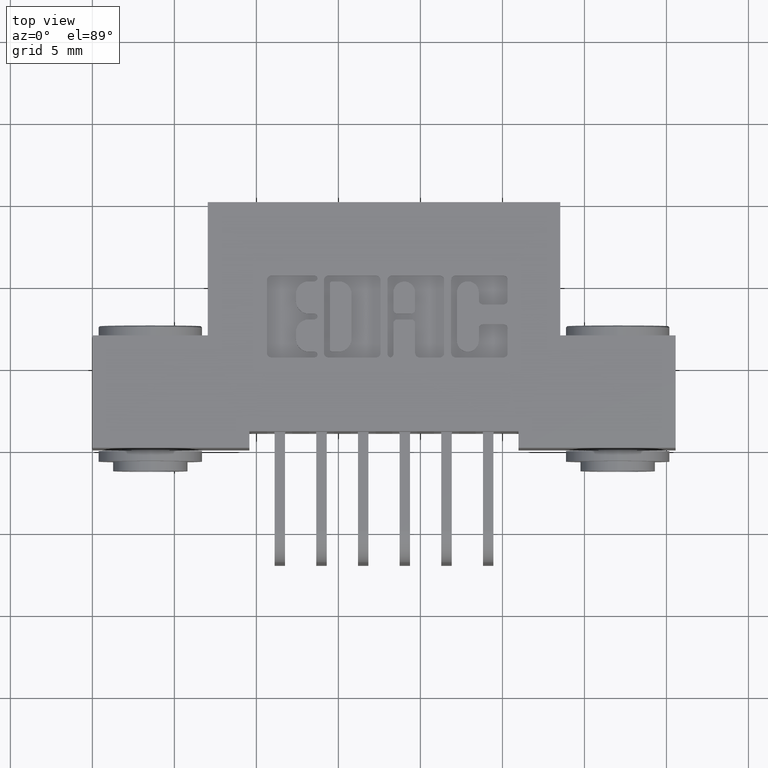
[diagram: clean part render]
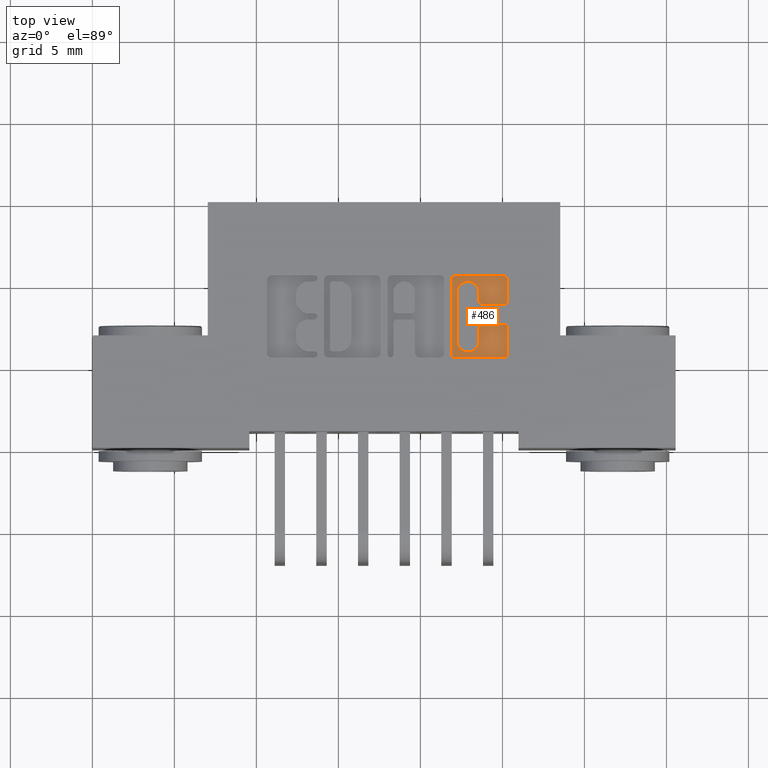
[diagram: same view with one face highlighted and labeled with its STEP entity id]
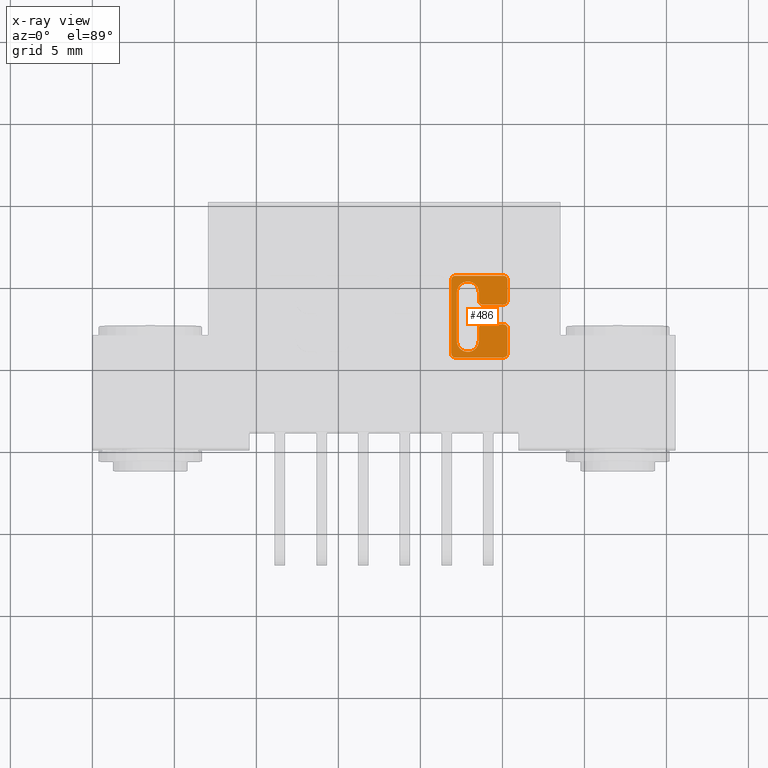
[diagram: x-ray of the same camera — body ghosted, the highlighted face saturated]
A machine part, top view. The second image highlights one B-rep face of the part: STEP entity #486.
The next image is the same camera in x-ray: the body ghosted, the highlighted face saturated — about 0% of this face is hidden behind the body in this view.
In plain terms, the highlighted planar face has unit normal (0, 0, 1).
Its self-contained STEP definition (entity closure, byte-faithful):
#142 = CARTESIAN_POINT ( 'NONE',  ( 0.9274781569731789200, 0.2568421540424529700, -0.01000000000000000000 ) ) ;
#288 = AXIS2_PLACEMENT_3D ( 'NONE', #3077, #3147, #3045 ) ;
#290 = EDGE_CURVE ( 'NONE', #2171, #2040, #5372, .T. ) ;
#343 = ORIENTED_EDGE ( 'NONE', *, *, #8305, .T. ) ;
#353 = EDGE_CURVE ( 'NONE', #1135, #7141, #3125, .T. ) ;
#371 = EDGE_CURVE ( 'NONE', #6060, #2040, #6993, .T. ) ;
#372 = ORIENTED_EDGE ( 'NONE', *, *, #1027, .T. ) ;
#385 = LINE ( 'NONE', #4344, #3640 ) ;
#418 = DIRECTION ( 'NONE',  ( 0.0000000000000000000, 1.000000000000000000, -0.0000000000000000000 ) ) ;
#442 = ORIENTED_EDGE ( 'NONE', *, *, #371, .T. ) ;
#486 = ADVANCED_FACE ( 'NONE', ( #2154 ), #2582, .T. ) ;
#634 = CIRCLE ( 'NONE', #6360, 0.009815670203811672700 ) ;
#677 = AXIS2_PLACEMENT_3D ( 'NONE', #2444, #2121, #870 ) ;
#755 = VECTOR ( 'NONE', #1211, 39.37007874015748100 ) ;
#852 = CARTESIAN_POINT ( 'NONE',  ( 0.8612223830974584700, 0.4033410318342101100, -0.01000000000000000000 ) ) ;
#870 = DIRECTION ( 'NONE',  ( 1.000000000000000000, 0.0000000000000000000, 0.0000000000000000000 ) ) ;
#929 = CARTESIAN_POINT ( 'NONE',  ( 0.9966786319099720800, 0.4033410318341947900, -0.01000000000000000000 ) ) ;
#968 = VECTOR ( 'NONE', #4369, 39.37007874015748100 ) ;
#1009 = VECTOR ( 'NONE', #418, 39.37007874015748100 ) ;
#1014 = LINE ( 'NONE', #8104, #8121 ) ;
#1017 = CARTESIAN_POINT ( 'NONE',  ( 0.0000000000000000000, 0.2963502266127575600, -0.01000000000000000000 ) ) ;
#1027 = EDGE_CURVE ( 'NONE', #6932, #4885, #5375, .T. ) ;
#1106 = EDGE_CURVE ( 'NONE', #2171, #2189, #1014, .T. ) ;
#1129 = EDGE_CURVE ( 'NONE', #8380, #8738, #2712, .T. ) ;
#1135 = VERTEX_POINT ( 'NONE', #7956 ) ;
#1138 = DIRECTION ( 'NONE',  ( 1.000000000000000000, 0.0000000000000000000, 0.0000000000000000000 ) ) ;
#1211 = DIRECTION ( 'NONE',  ( -1.000000000000000000, 0.0000000000000000000, 0.0000000000000000000 ) ) ;
#1233 = VECTOR ( 'NONE', #4773, 39.37007874015748100 ) ;
#1240 = DIRECTION ( 'NONE',  ( -0.0000000000000000000, 0.0000000000000000000, 1.000000000000000000 ) ) ;
#1345 = AXIS2_PLACEMENT_3D ( 'NONE', #2216, #2159, #2118 ) ;
#1510 = CIRCLE ( 'NONE', #1345, 0.009815670203804980100 ) ;
#1573 = VECTOR ( 'NONE', #4543, 39.37007874015748100 ) ;
#1577 = DIRECTION ( 'NONE',  ( 1.000000000000000000, 0.0000000000000000000, 0.0000000000000000000 ) ) ;
#1691 = DIRECTION ( 'NONE',  ( -0.0000000000000000000, 0.0000000000000000000, 1.000000000000000000 ) ) ;
#1695 = CARTESIAN_POINT ( 'NONE',  ( 0.9868629617061529500, 0.2865345564089704100, -0.01000000000000000000 ) ) ;
#1730 = LINE ( 'NONE', #4117, #8771 ) ;
#1866 = VERTEX_POINT ( 'NONE', #4081 ) ;
#1912 = CARTESIAN_POINT ( 'NONE',  ( 0.9966786319099402200, 0.0000000000000000000, -0.01000000000000000000 ) ) ;
#1987 = VERTEX_POINT ( 'NONE', #5186 ) ;
#2040 = VERTEX_POINT ( 'NONE', #7015 ) ;
#2099 = CARTESIAN_POINT ( 'NONE',  ( 0.9868629617061319700, 0.4033410318342109400, -0.01000000000000000000 ) ) ;
#2118 = DIRECTION ( 'NONE',  ( 1.000000000000000000, 0.0000000000000000000, 0.0000000000000000000 ) ) ;
#2121 = DIRECTION ( 'NONE',  ( -0.0000000000000000000, 0.0000000000000000000, 1.000000000000000000 ) ) ;
#2154 = FACE_OUTER_BOUND ( 'NONE', #6549, .T. ) ;
#2159 = DIRECTION ( 'NONE',  ( -0.0000000000000000000, 0.0000000000000000000, 1.000000000000000000 ) ) ;
#2171 = VERTEX_POINT ( 'NONE', #3623 ) ;
#2189 = VERTEX_POINT ( 'NONE', #5973 ) ;
#2198 = ORIENTED_EDGE ( 'NONE', *, *, #3734, .T. ) ;
#2216 = CARTESIAN_POINT ( 'NONE',  ( 0.9868629617061670500, 0.3537718973050386600, -0.01000000000000000000 ) ) ;
#2252 = DIRECTION ( 'NONE',  ( 1.000000000000000000, 0.0000000000000000000, 0.0000000000000000000 ) ) ;
#2260 = DIRECTION ( 'NONE',  ( -0.0000000000000000000, 0.0000000000000000000, 1.000000000000000000 ) ) ;
#2264 = CARTESIAN_POINT ( 'NONE',  ( 0.8710380533012994600, 0.4033410318342101100, -0.01000000000000000000 ) ) ;
#2444 = CARTESIAN_POINT ( 'NONE',  ( 0.0000000000000000000, 0.0000000000000000000, -0.01000000000000000000 ) ) ;
#2471 = DIRECTION ( 'NONE',  ( -0.0000000000000000000, 0.0000000000000000000, 1.000000000000000000 ) ) ;
#2490 = ORIENTED_EDGE ( 'NONE', *, *, #5027, .T. ) ;
#2582 = PLANE ( 'NONE',  #677 ) ;
#2639 = ORIENTED_EDGE ( 'NONE', *, *, #8896, .T. ) ;
#2668 = LINE ( 'NONE', #1017, #755 ) ;
#2712 = CIRCLE ( 'NONE', #7902, 0.009815670203788042300 ) ;
#2786 = VERTEX_POINT ( 'NONE', #4947 ) ;
#2820 = ORIENTED_EDGE ( 'NONE', *, *, #2883, .T. ) ;
#2825 = CARTESIAN_POINT ( 'NONE',  ( 0.9868629617061682700, 0.4131567020380509900, -0.01000000000000000000 ) ) ;
#2883 = EDGE_CURVE ( 'NONE', #8441, #8344, #3964, .T. ) ;
#3045 = DIRECTION ( 'NONE',  ( 1.000000000000000000, 0.0000000000000000000, 0.0000000000000000000 ) ) ;
#3077 = CARTESIAN_POINT ( 'NONE',  ( 0.9012212391779986800, 0.2568421540424529700, -0.01000000000000000000 ) ) ;
#3080 = VERTEX_POINT ( 'NONE', #8322 ) ;
#3125 = LINE ( 'NONE', #4766, #1233 ) ;
#3147 = DIRECTION ( 'NONE',  ( -0.0000000000000000000, 0.0000000000000000000, 1.000000000000000000 ) ) ;
#3151 = DIRECTION ( 'NONE',  ( 0.0000000000000000000, -1.000000000000000000, 0.0000000000000000000 ) ) ;
#3432 = CARTESIAN_POINT ( 'NONE',  ( 0.9966786319099720800, 0.3537718973050386600, -0.01000000000000000000 ) ) ;
#3456 = CIRCLE ( 'NONE', #8731, 0.009815670203806754800 ) ;
#3459 = EDGE_CURVE ( 'NONE', #4885, #8380, #2668, .T. ) ;
#3474 = CIRCLE ( 'NONE', #288, 0.02625691779518036400 ) ;
#3623 = CARTESIAN_POINT ( 'NONE',  ( 0.9274781569731658200, 0.3731578454992599000, -0.01000000000000000000 ) ) ;
#3640 = VECTOR ( 'NONE', #3151, 39.37007874015748100 ) ;
#3702 = AXIS2_PLACEMENT_3D ( 'NONE', #6612, #4641, #6032 ) ;
#3734 = EDGE_CURVE ( 'NONE', #8738, #4567, #385, .T. ) ;
#3806 = AXIS2_PLACEMENT_3D ( 'NONE', #1695, #1691, #1577 ) ;
#3807 = CARTESIAN_POINT ( 'NONE',  ( 0.9868629617061565100, 0.2963502266127575600, -0.01000000000000000000 ) ) ;
#3812 = VECTOR ( 'NONE', #5997, 39.37007874015748100 ) ;
#3814 = DIRECTION ( 'NONE',  ( -1.000000000000000000, 0.0000000000000000000, 0.0000000000000000000 ) ) ;
#3889 = CARTESIAN_POINT ( 'NONE',  ( 0.9966786319099402200, 0.2266589681657829600, -0.01000000000000000000 ) ) ;
#3902 = ORIENTED_EDGE ( 'NONE', *, *, #5823, .T. ) ;
#3964 = CIRCLE ( 'NONE', #6466, 0.009815670203840084000 ) ;
#4081 = CARTESIAN_POINT ( 'NONE',  ( 0.9868629617061670500, 0.3439562271012335800, -0.01000000000000000000 ) ) ;
#4117 = CARTESIAN_POINT ( 'NONE',  ( 0.0000000000000000000, 0.4131567020380509900, -0.01000000000000000000 ) ) ;
#4224 = ORIENTED_EDGE ( 'NONE', *, *, #290, .F. ) ;
#4290 = VERTEX_POINT ( 'NONE', #852 ) ;
#4337 = CARTESIAN_POINT ( 'NONE',  ( 0.8749643213828183200, 0.2568421540424529700, -0.01000000000000000000 ) ) ;
#4344 = CARTESIAN_POINT ( 'NONE',  ( 0.9274781569731789200, 0.0000000000000000000, -0.01000000000000000000 ) ) ;
#4360 = CARTESIAN_POINT ( 'NONE',  ( 0.0000000000000000000, 0.3439562271012335800, -0.01000000000000000000 ) ) ;
#4369 = DIRECTION ( 'NONE',  ( 1.000000000000000000, 0.0000000000000000000, 0.0000000000000000000 ) ) ;
#4483 = CARTESIAN_POINT ( 'NONE',  ( 0.9966786319099720800, 0.0000000000000000000, -0.01000000000000000000 ) ) ;
#4543 = DIRECTION ( 'NONE',  ( 0.0000000000000000000, 1.000000000000000000, -0.0000000000000000000 ) ) ;
#4567 = VERTEX_POINT ( 'NONE', #142 ) ;
#4631 = EDGE_CURVE ( 'NONE', #2189, #1987, #634, .T. ) ;
#4641 = DIRECTION ( 'NONE',  ( -0.0000000000000000000, 0.0000000000000000000, 1.000000000000000000 ) ) ;
#4664 = ORIENTED_EDGE ( 'NONE', *, *, #5381, .T. ) ;
#4677 = ORIENTED_EDGE ( 'NONE', *, *, #5815, .T. ) ;
#4703 = LINE ( 'NONE', #4360, #968 ) ;
#4739 = DIRECTION ( 'NONE',  ( 0.0000000000000000000, 1.000000000000000000, -0.0000000000000000000 ) ) ;
#4747 = CIRCLE ( 'NONE', #5933, 0.009815670203840902800 ) ;
#4766 = CARTESIAN_POINT ( 'NONE',  ( 0.0000000000000000000, 0.2168432979619831800, -0.01000000000000000000 ) ) ;
#4773 = DIRECTION ( 'NONE',  ( 1.000000000000000000, 0.0000000000000000000, 0.0000000000000000000 ) ) ;
#4854 = EDGE_CURVE ( 'NONE', #1987, #1866, #4703, .T. ) ;
#4885 = VERTEX_POINT ( 'NONE', #3807 ) ;
#4937 = VERTEX_POINT ( 'NONE', #3432 ) ;
#4947 = CARTESIAN_POINT ( 'NONE',  ( 0.8710380533012994600, 0.4131567020380509900, -0.01000000000000000000 ) ) ;
#5027 = EDGE_CURVE ( 'NONE', #1866, #4937, #1510, .T. ) ;
#5186 = CARTESIAN_POINT ( 'NONE',  ( 0.9372938271769775100, 0.3439562271012335800, -0.01000000000000000000 ) ) ;
#5320 = AXIS2_PLACEMENT_3D ( 'NONE', #6106, #6096, #6076 ) ;
#5349 = ORIENTED_EDGE ( 'NONE', *, *, #1129, .T. ) ;
#5372 = CIRCLE ( 'NONE', #3702, 0.02625691779517380600 ) ;
#5375 = CIRCLE ( 'NONE', #3806, 0.009815670203787221800 ) ;
#5376 = VERTEX_POINT ( 'NONE', #3889 ) ;
#5381 = EDGE_CURVE ( 'NONE', #8344, #2786, #1730, .T. ) ;
#5409 = CARTESIAN_POINT ( 'NONE',  ( 0.9868629617061343000, 0.2168432979619831800, -0.01000000000000000000 ) ) ;
#5621 = LINE ( 'NONE', #6123, #3812 ) ;
#5774 = ORIENTED_EDGE ( 'NONE', *, *, #4854, .T. ) ;
#5815 = EDGE_CURVE ( 'NONE', #7141, #5376, #7447, .T. ) ;
#5823 = EDGE_CURVE ( 'NONE', #4290, #3080, #5621, .T. ) ;
#5911 = ORIENTED_EDGE ( 'NONE', *, *, #1106, .T. ) ;
#5933 = AXIS2_PLACEMENT_3D ( 'NONE', #2264, #2260, #2252 ) ;
#5973 = CARTESIAN_POINT ( 'NONE',  ( 0.9274781569731658200, 0.3537718973050452100, -0.01000000000000000000 ) ) ;
#5997 = DIRECTION ( 'NONE',  ( 0.0000000000000000000, -1.000000000000000000, 0.0000000000000000000 ) ) ;
#6032 = DIRECTION ( 'NONE',  ( 1.000000000000000000, 0.0000000000000000000, 0.0000000000000000000 ) ) ;
#6060 = VERTEX_POINT ( 'NONE', #4337 ) ;
#6076 = DIRECTION ( 'NONE',  ( 1.000000000000000000, 0.0000000000000000000, 0.0000000000000000000 ) ) ;
#6096 = DIRECTION ( 'NONE',  ( -0.0000000000000000000, 0.0000000000000000000, 1.000000000000000000 ) ) ;
#6106 = CARTESIAN_POINT ( 'NONE',  ( 0.9868629617061343000, 0.2266589681657899300, -0.01000000000000000000 ) ) ;
#6123 = CARTESIAN_POINT ( 'NONE',  ( 0.8612223830974584700, 0.0000000000000000000, -0.01000000000000000000 ) ) ;
#6360 = AXIS2_PLACEMENT_3D ( 'NONE', #7949, #7926, #7910 ) ;
#6466 = AXIS2_PLACEMENT_3D ( 'NONE', #2099, #1240, #1138 ) ;
#6512 = ORIENTED_EDGE ( 'NONE', *, *, #353, .T. ) ;
#6549 = EDGE_LOOP ( 'NONE', ( #5774, #2490, #8681, #2820, #4664, #343, #3902, #2639, #6512, #4677, #7493, #372, #8066, #5349, #2198, #8282, #442, #4224, #5911, #8438 ) ) ;
#6572 = CARTESIAN_POINT ( 'NONE',  ( 0.8710380533012652700, 0.2266589681657899300, -0.01000000000000000000 ) ) ;
#6607 = CARTESIAN_POINT ( 'NONE',  ( 0.9966786319099402200, 0.2865345564089704100, -0.01000000000000000000 ) ) ;
#6612 = CARTESIAN_POINT ( 'NONE',  ( 0.9012212391779921300, 0.3731578459575296000, -0.01000000000000000000 ) ) ;
#6932 = VERTEX_POINT ( 'NONE', #6607 ) ;
#6993 = LINE ( 'NONE', #8243, #1009 ) ;
#7015 = CARTESIAN_POINT ( 'NONE',  ( 0.8749643213828183200, 0.3731578459575296000, -0.01000000000000000000 ) ) ;
#7141 = VERTEX_POINT ( 'NONE', #5409 ) ;
#7263 = DIRECTION ( 'NONE',  ( 1.000000000000000000, 0.0000000000000000000, 0.0000000000000000000 ) ) ;
#7400 = EDGE_CURVE ( 'NONE', #4937, #8441, #7733, .T. ) ;
#7447 = CIRCLE ( 'NONE', #5320, 0.009815670203806345400 ) ;
#7493 = ORIENTED_EDGE ( 'NONE', *, *, #7860, .T. ) ;
#7733 = LINE ( 'NONE', #4483, #1573 ) ;
#7818 = DIRECTION ( 'NONE',  ( 1.000000000000000000, 0.0000000000000000000, 0.0000000000000000000 ) ) ;
#7836 = DIRECTION ( 'NONE',  ( -0.0000000000000000000, 0.0000000000000000000, 1.000000000000000000 ) ) ;
#7855 = CARTESIAN_POINT ( 'NONE',  ( 0.9372938271769669600, 0.2865345564089695800, -0.01000000000000000000 ) ) ;
#7860 = EDGE_CURVE ( 'NONE', #5376, #6932, #8422, .T. ) ;
#7902 = AXIS2_PLACEMENT_3D ( 'NONE', #7855, #7836, #7818 ) ;
#7910 = DIRECTION ( 'NONE',  ( 1.000000000000000000, 0.0000000000000000000, 0.0000000000000000000 ) ) ;
#7926 = DIRECTION ( 'NONE',  ( -0.0000000000000000000, 0.0000000000000000000, 1.000000000000000000 ) ) ;
#7949 = CARTESIAN_POINT ( 'NONE',  ( 0.9372938271769775100, 0.3537718973050452100, -0.01000000000000000000 ) ) ;
#7956 = CARTESIAN_POINT ( 'NONE',  ( 0.8710380533012652700, 0.2168432979619831800, -0.01000000000000000000 ) ) ;
#7979 = CARTESIAN_POINT ( 'NONE',  ( 0.9274781569731789200, 0.2865345564089686900, -0.01000000000000000000 ) ) ;
#8039 = EDGE_CURVE ( 'NONE', #6060, #4567, #3474, .T. ) ;
#8066 = ORIENTED_EDGE ( 'NONE', *, *, #3459, .T. ) ;
#8093 = DIRECTION ( 'NONE',  ( 0.0000000000000000000, -1.000000000000000000, 0.0000000000000000000 ) ) ;
#8104 = CARTESIAN_POINT ( 'NONE',  ( 0.9274781569731658200, 0.0000000000000000000, -0.01000000000000000000 ) ) ;
#8121 = VECTOR ( 'NONE', #8093, 39.37007874015748100 ) ;
#8213 = VECTOR ( 'NONE', #4739, 39.37007874015748100 ) ;
#8243 = CARTESIAN_POINT ( 'NONE',  ( 0.8749643213828183200, 0.0000000000000000000, -0.01000000000000000000 ) ) ;
#8282 = ORIENTED_EDGE ( 'NONE', *, *, #8039, .F. ) ;
#8305 = EDGE_CURVE ( 'NONE', #2786, #4290, #4747, .T. ) ;
#8322 = CARTESIAN_POINT ( 'NONE',  ( 0.8612223830974584700, 0.2266589681657899300, -0.01000000000000000000 ) ) ;
#8344 = VERTEX_POINT ( 'NONE', #2825 ) ;
#8380 = VERTEX_POINT ( 'NONE', #8861 ) ;
#8422 = LINE ( 'NONE', #1912, #8213 ) ;
#8438 = ORIENTED_EDGE ( 'NONE', *, *, #4631, .T. ) ;
#8441 = VERTEX_POINT ( 'NONE', #929 ) ;
#8681 = ORIENTED_EDGE ( 'NONE', *, *, #7400, .T. ) ;
#8731 = AXIS2_PLACEMENT_3D ( 'NONE', #6572, #2471, #7263 ) ;
#8738 = VERTEX_POINT ( 'NONE', #7979 ) ;
#8771 = VECTOR ( 'NONE', #3814, 39.37007874015748100 ) ;
#8861 = CARTESIAN_POINT ( 'NONE',  ( 0.9372938271769669600, 0.2963502266127575600, -0.01000000000000000000 ) ) ;
#8896 = EDGE_CURVE ( 'NONE', #3080, #1135, #3456, .T. ) ;